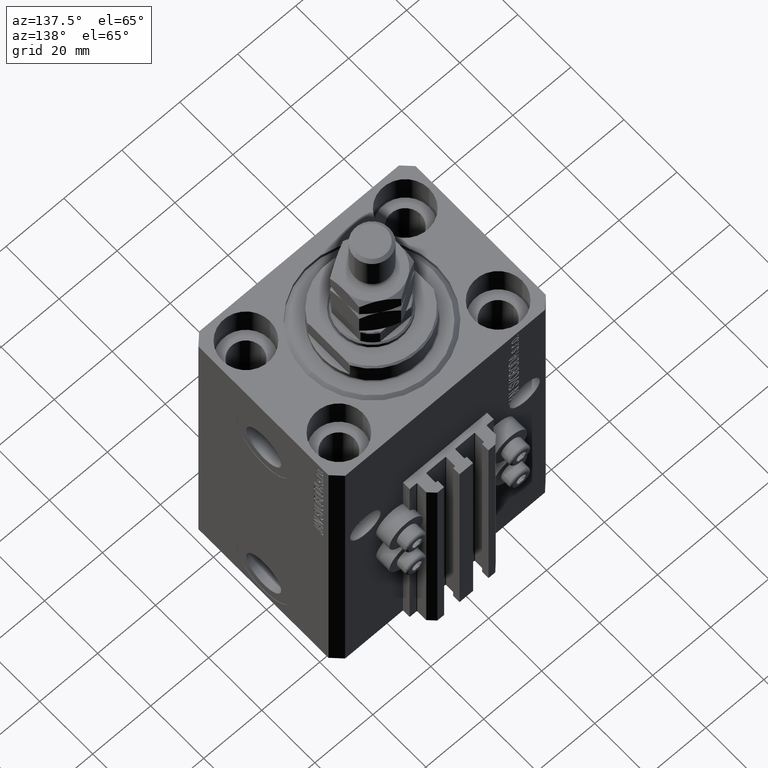
[diagram: clean part render]
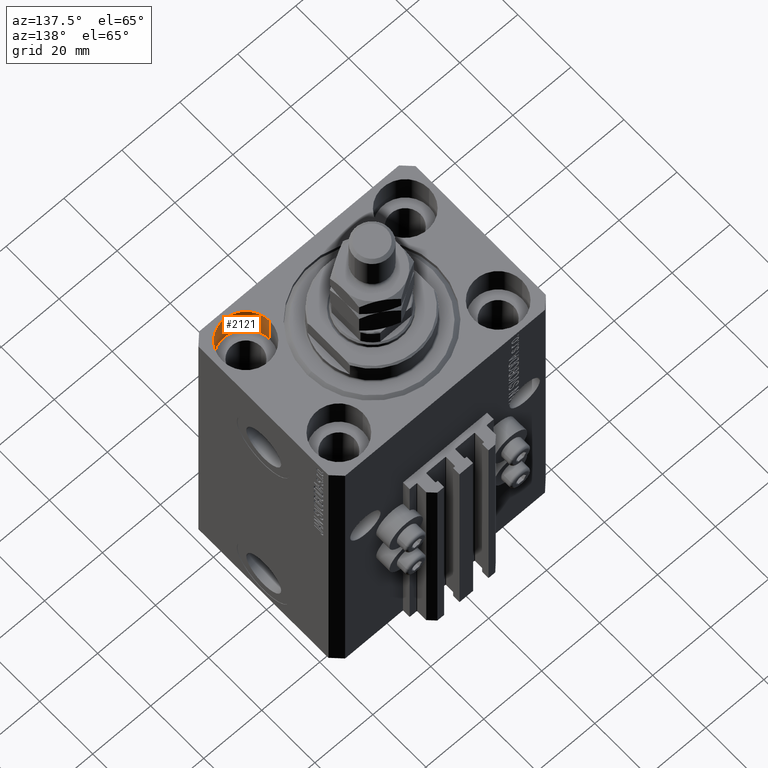
[diagram: same view with one face highlighted and labeled with its STEP entity id]
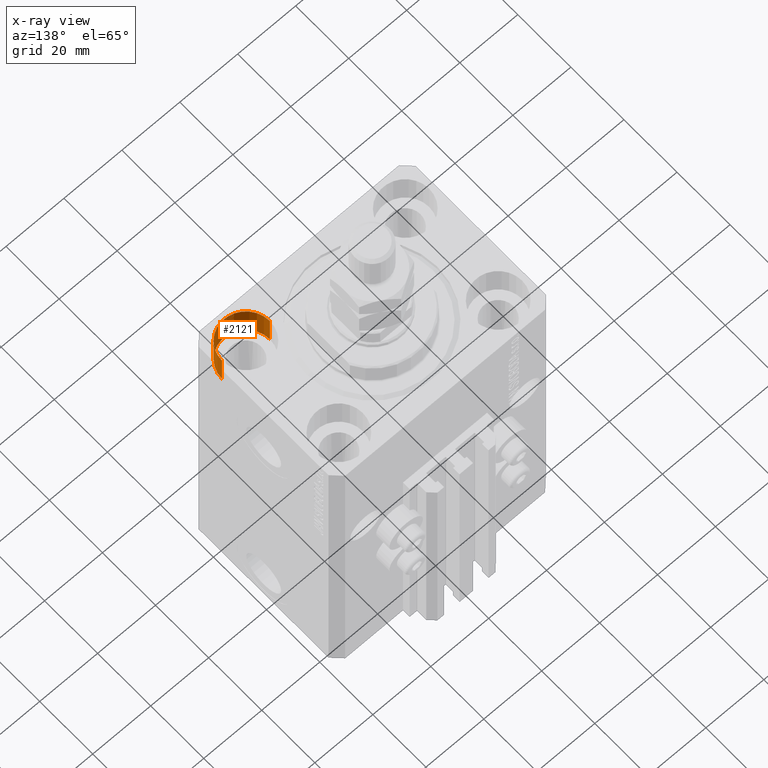
[diagram: x-ray of the same camera — body ghosted, the highlighted face saturated]
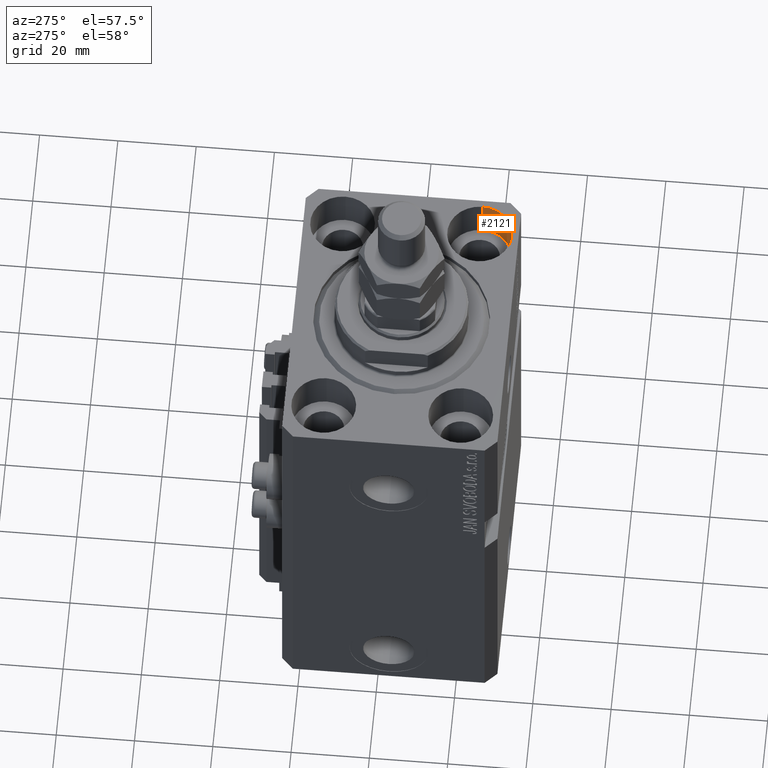
[diagram: same view with one face highlighted and labeled with its STEP entity id]
A machine part, auxiliary view. The second image highlights one B-rep face of the part: STEP entity #2121.
The next image is the same camera in x-ray: the body ghosted, the highlighted face saturated — about 0% of this face is hidden behind the body in this view.
A second angle (auxiliary view) of the same face is appended — the face is thin or edge-on in the first view.
In plain terms, the highlighted cylindrical surface (edge-blend (fillet) strip) has radius 8.25 mm, axis along (0, 0, 1).
Its self-contained STEP definition (entity closure, byte-faithful):
#706 = FACE_OUTER_BOUND ( 'NONE', #46106, .T. ) ;
#2121 = ADVANCED_FACE ( 'NONE', ( #706 ), #12105, .F. ) ;
#5445 = CIRCLE ( 'NONE', #11803, 8.250000000000000000 ) ;
#5467 = DIRECTION ( 'NONE',  ( 0.000000000000000000, 0.000000000000000000, 1.000000000000000000 ) ) ;
#6112 = CARTESIAN_POINT ( 'NONE',  ( 27.50000000000000355, -17.50000000000000000, -11.00000000000000000 ) ) ;
#6776 = DIRECTION ( 'NONE',  ( -0.000000000000000000, -0.000000000000000000, 1.000000000000000000 ) ) ;
#7946 = VECTOR ( 'NONE', #6776, 1000.000000000000000 ) ;
#8800 = LINE ( 'NONE', #12519, #39632 ) ;
#9335 = DIRECTION ( 'NONE',  ( 1.000000000000000000, 0.000000000000000000, 0.000000000000000000 ) ) ;
#9636 = VERTEX_POINT ( 'NONE', #44767 ) ;
#10486 = LINE ( 'NONE', #40677, #7946 ) ;
#11044 = ORIENTED_EDGE ( 'NONE', *, *, #17692, .T. ) ;
#11803 = AXIS2_PLACEMENT_3D ( 'NONE', #17835, #5467, #17344 ) ;
#12105 = CYLINDRICAL_SURFACE ( 'NONE', #35653, 8.250000000000000000 ) ;
#12519 = CARTESIAN_POINT ( 'NONE',  ( 19.25000000000000000, -17.50000000000000000, -11.00000000000000000 ) ) ;
#12581 = DIRECTION ( 'NONE',  ( -0.000000000000000000, -0.000000000000000000, 1.000000000000000000 ) ) ;
#13311 = DIRECTION ( 'NONE',  ( 1.000000000000000000, 0.000000000000000000, 0.000000000000000000 ) ) ;
#16095 = VERTEX_POINT ( 'NONE', #21984 ) ;
#17001 = DIRECTION ( 'NONE',  ( 0.000000000000000000, 0.000000000000000000, 1.000000000000000000 ) ) ;
#17114 = ORIENTED_EDGE ( 'NONE', *, *, #41206, .F. ) ;
#17344 = DIRECTION ( 'NONE',  ( 1.000000000000000000, 0.000000000000000000, 0.000000000000000000 ) ) ;
#17692 = EDGE_CURVE ( 'NONE', #34723, #9636, #8800, .T. ) ;
#17823 = AXIS2_PLACEMENT_3D ( 'NONE', #6112, #17001, #9335 ) ;
#17835 = CARTESIAN_POINT ( 'NONE',  ( 27.50000000000000355, -17.50000000000000000, 0.000000000000000000 ) ) ;
#21984 = CARTESIAN_POINT ( 'NONE',  ( 35.75000000000000711, -17.50000000000000000, -11.00000000000000000 ) ) ;
#23633 = VERTEX_POINT ( 'NONE', #34104 ) ;
#23879 = DIRECTION ( 'NONE',  ( -0.000000000000000000, -0.000000000000000000, 1.000000000000000000 ) ) ;
#24016 = ORIENTED_EDGE ( 'NONE', *, *, #41543, .T. ) ;
#30899 = CARTESIAN_POINT ( 'NONE',  ( 27.50000000000000355, -17.50000000000000000, -11.00000000000000000 ) ) ;
#32604 = CARTESIAN_POINT ( 'NONE',  ( 19.25000000000000000, -17.50000000000000000, -11.00000000000000000 ) ) ;
#34104 = CARTESIAN_POINT ( 'NONE',  ( 35.75000000000000711, -17.50000000000000000, 0.000000000000000000 ) ) ;
#34723 = VERTEX_POINT ( 'NONE', #32604 ) ;
#35208 = CIRCLE ( 'NONE', #17823, 8.250000000000000000 ) ;
#35653 = AXIS2_PLACEMENT_3D ( 'NONE', #30899, #12581, #13311 ) ;
#39632 = VECTOR ( 'NONE', #23879, 1000.000000000000000 ) ;
#40677 = CARTESIAN_POINT ( 'NONE',  ( 35.75000000000000711, -17.50000000000000000, -11.00000000000000000 ) ) ;
#41206 = EDGE_CURVE ( 'NONE', #16095, #23633, #10486, .T. ) ;
#41543 = EDGE_CURVE ( 'NONE', #9636, #23633, #5445, .T. ) ;
#43869 = EDGE_CURVE ( 'NONE', #34723, #16095, #35208, .T. ) ;
#44767 = CARTESIAN_POINT ( 'NONE',  ( 19.25000000000000000, -17.50000000000000000, 0.000000000000000000 ) ) ;
#46106 = EDGE_LOOP ( 'NONE', ( #48894, #11044, #24016, #17114 ) ) ;
#48894 = ORIENTED_EDGE ( 'NONE', *, *, #43869, .F. ) ;